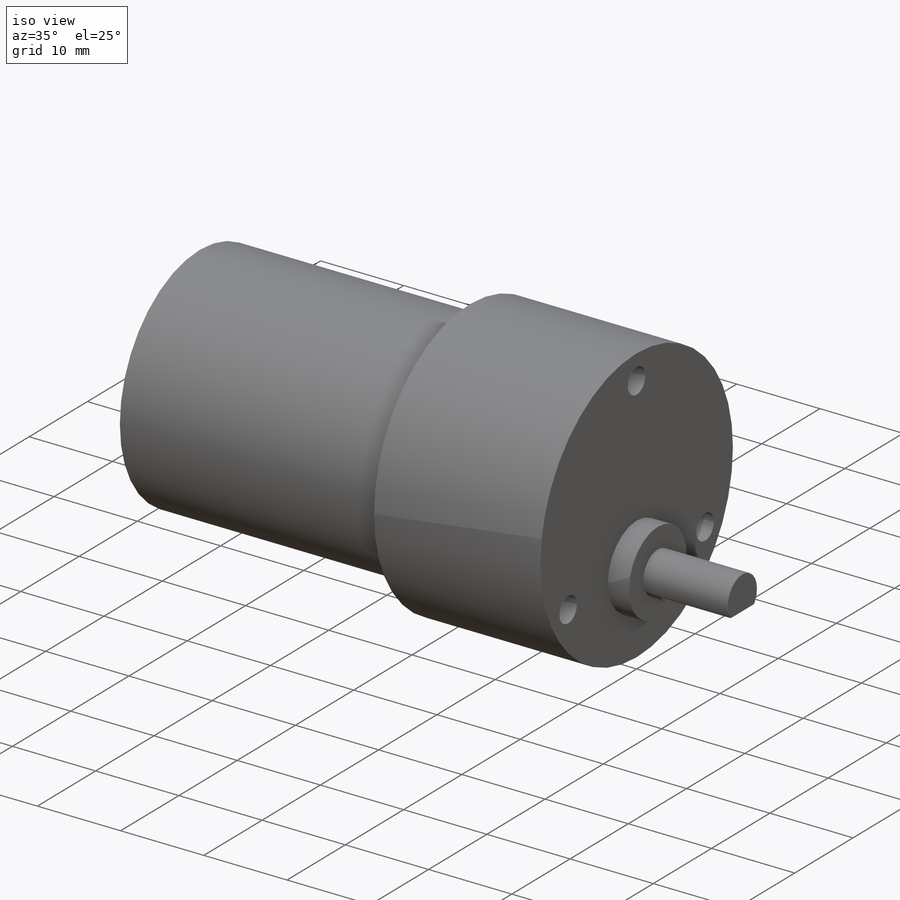
[diagram: iso view]
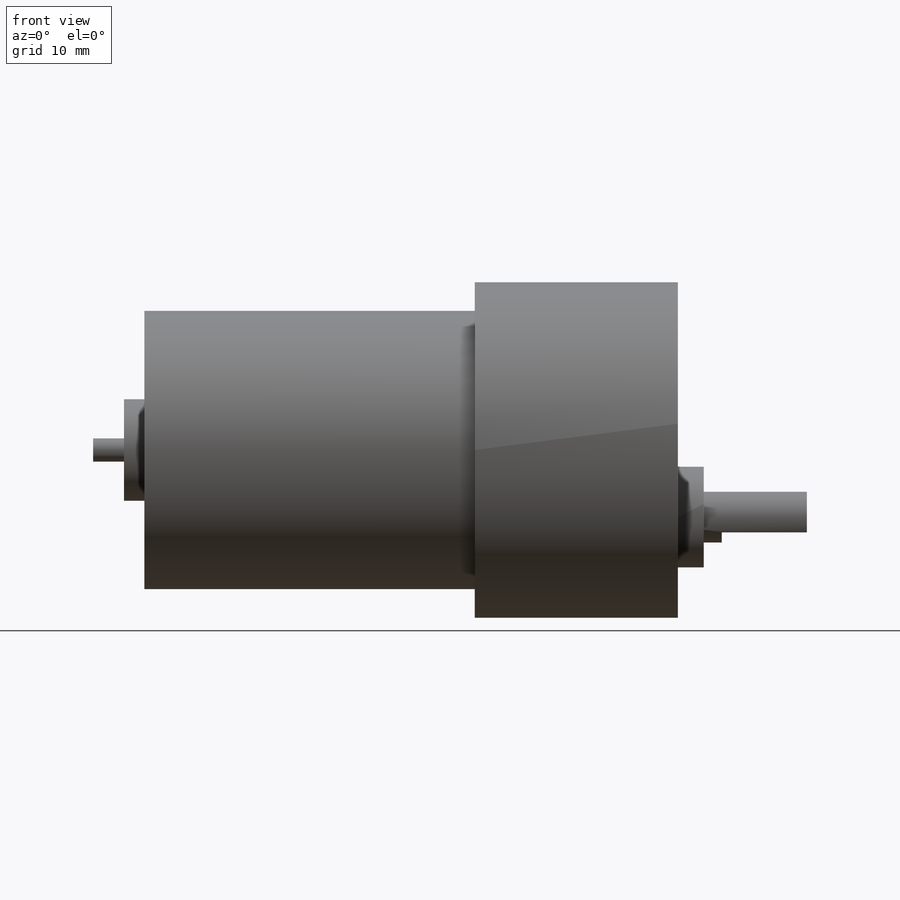
[diagram: front view]
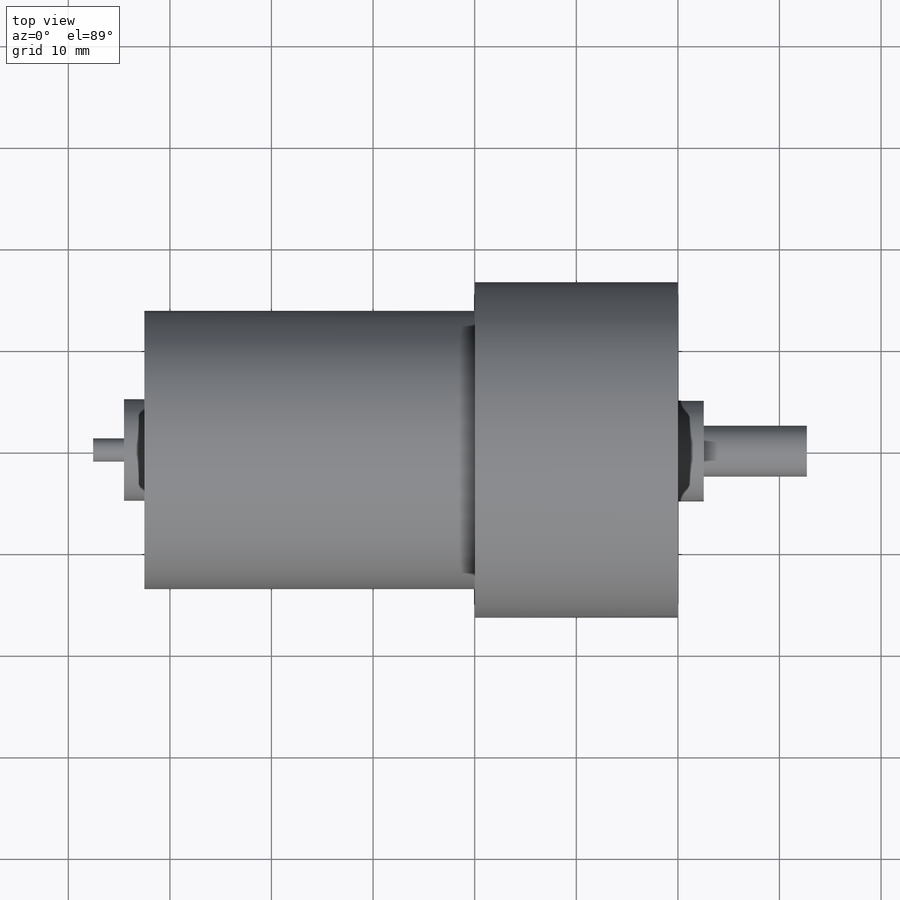
[diagram: top view]
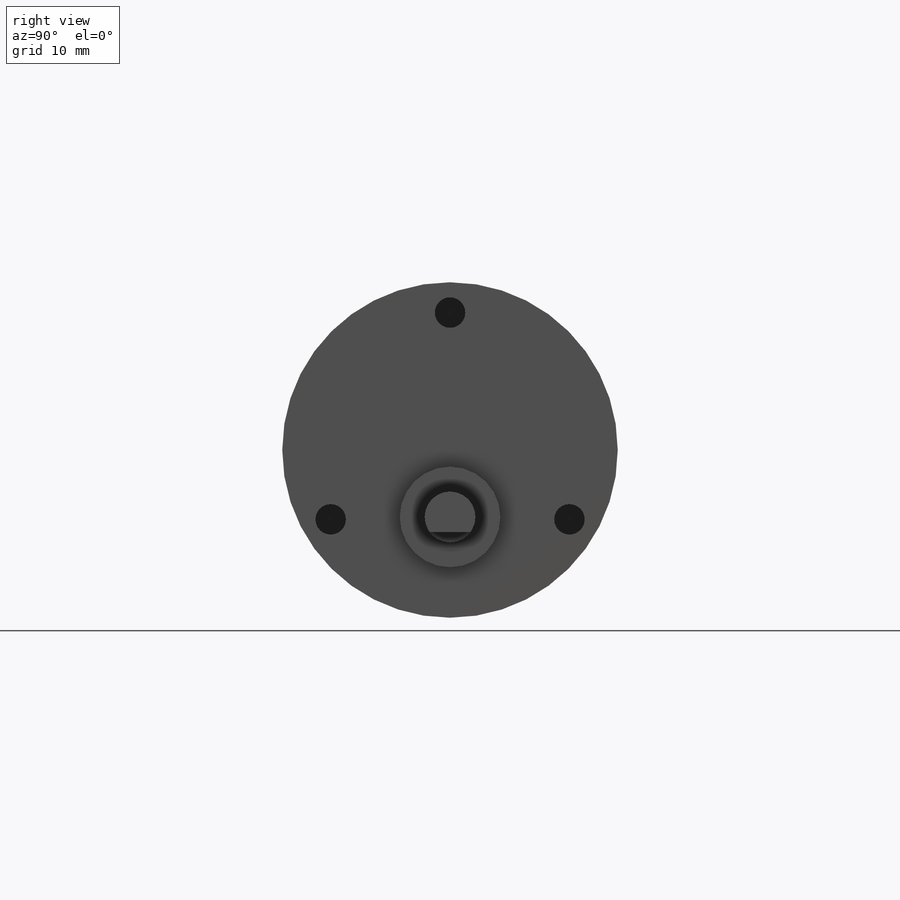
[diagram: right view]
SOLIDWORKS PART (.sldprt)
format: sldprt  version: not decoded by parser v0  size: 225,792 bytes
history: native  units: mm
features: sketch x8, extrude x6, cut_extrude x2, material x1 (+11 scaffold rows collapsed)
feature tree (28):
  scaffold x11  (default folders/planes/origin — collapsed)
  material  "Material <not specified>"
  sketch  "Sketch1"  dims[D1=33.02mm]
  extrude  "Boss-Extrude2"  Depth=20mm
  sketch  "Sketch2"  dims[D1=27.3812mm]
  extrude  "Boss-Extrude3"  Depth=32.512mm
  sketch  "Sketch3"  dims[c1.D1=9.906mm c1.D2=9.906mm c1.D3=3.0mm c1.D7=3.0mm c1.D8=3.0mm c2.D2=9.779mm c2.D4=3.0mm c2.D5=23.5mm c2.D6=23.5mm c2.D9=23.5mm]
  cut_extrude  "Cut-Extrude1"  Depth=6.35mm
  sketch  "Sketch4"  dims[D1=9.906mm D2=9.906mm]
  extrude  "Boss-Extrude4"  Depth=2.54mm
  sketch  "Sketch5"  dims[D1=5.0mm]
  extrude  "Boss-Extrude5"  Depth=10.16mm
  sketch  "Sketch6"  dims[D1=10.0mm]
  extrude  "Boss-Extrude6"  Depth=2mm
  sketch  "Sketch7"  dims[D1=2.286mm]
  extrude  "Boss-Extrude7"  Depth=3.048mm
  sketch  "Sketch8"  dims[D1=4.0mm]
  cut_extrude  "Cut-Extrude2"  Depth=8.382mm
decode coverage: 16 of 16 modeling features carry decoded parameters
note: suppression state not decoded; provenance and decode notes live in map.json
